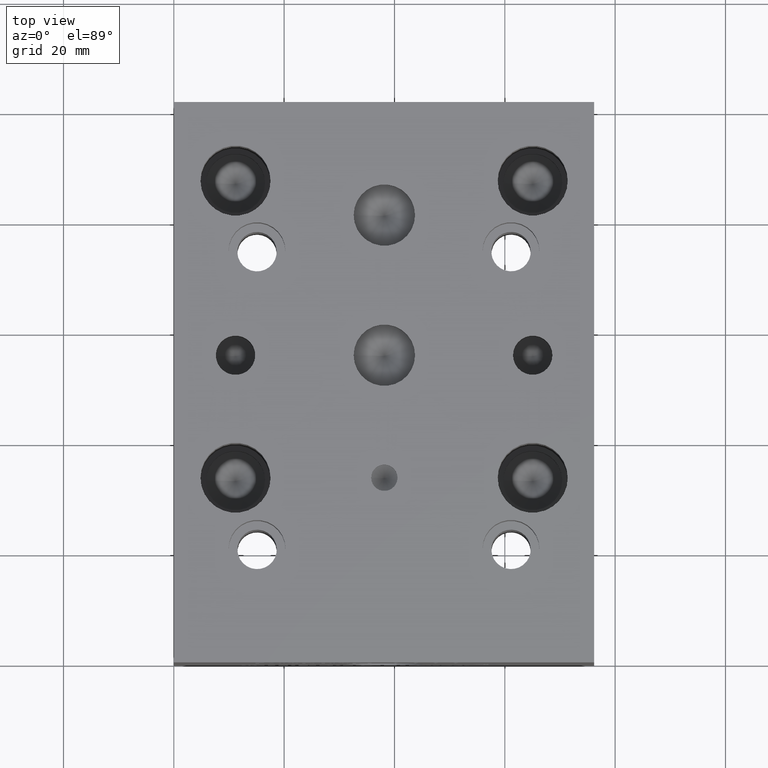
[diagram: clean part render]
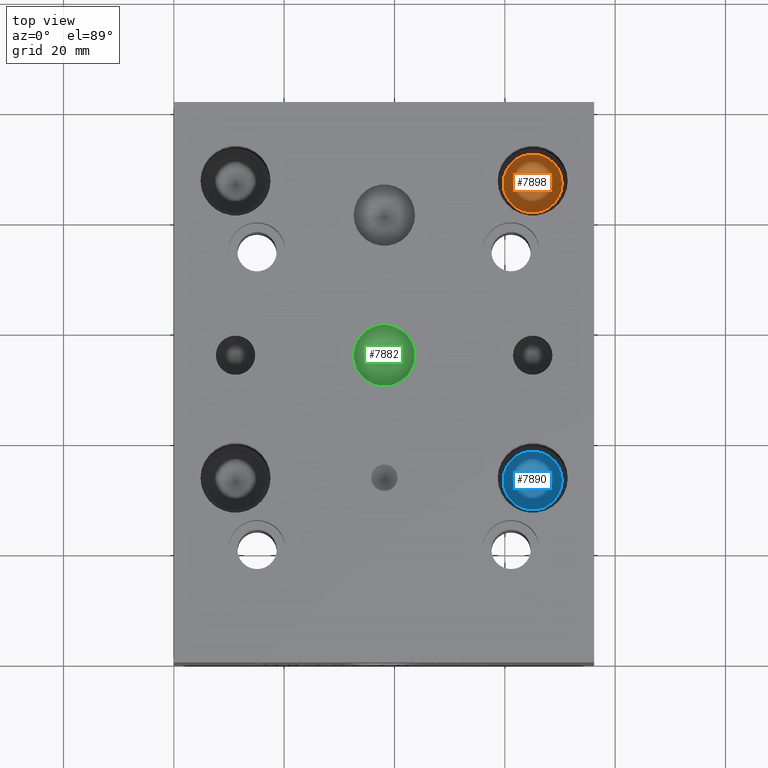
[diagram: same view with three faces highlighted in distinct colors, each labeled with its STEP entity id]
A machine part, top view with three faces highlighted in distinct colors.
Their STEP definitions:

[orange] entity #7898 — the highlighted conical surface has half-angle 60 deg.
#24=CONICAL_SURFACE('',#8344,2.6797,1.0471975511966);
#758=CIRCLE('',#8345,5.3594);
#759=CIRCLE('',#8346,5.3594);
#1197=FACE_OUTER_BOUND('',#1649,.T.);
#1649=EDGE_LOOP('',(#7159,#7160,#7161,#7162));
#2461=LINE('',#13254,#3256);
#3256=VECTOR('',#9999,2.6797);
#3988=VERTEX_POINT('',#13250);
#3989=VERTEX_POINT('',#13251);
#3990=VERTEX_POINT('',#13253);
#5059=EDGE_CURVE('',#3988,#3989,#758,.T.);
#5060=EDGE_CURVE('',#3989,#3990,#2461,.T.);
#5061=EDGE_CURVE('',#3989,#3988,#759,.T.);
#7159=ORIENTED_EDGE('',*,*,#5059,.T.);
#7160=ORIENTED_EDGE('',*,*,#5060,.T.);
#7161=ORIENTED_EDGE('',*,*,#5060,.F.);
#7162=ORIENTED_EDGE('',*,*,#5061,.T.);
#7898=ADVANCED_FACE('',(#1197),#24,.F.);
#8344=AXIS2_PLACEMENT_3D('',#13249,#9995,#9996);
#8345=AXIS2_PLACEMENT_3D('',#13252,#9997,#9998);
#8346=AXIS2_PLACEMENT_3D('',#13255,#10000,#10001);
#9995=DIRECTION('center_axis',(0.,0.,1.));
#9996=DIRECTION('ref_axis',(1.,0.,0.));
#9997=DIRECTION('center_axis',(0.,0.,1.));
#9998=DIRECTION('ref_axis',(1.,0.,0.));
#9999=DIRECTION('',(0.866025403784439,1.06057523872491E-16,-0.5));
#10000=DIRECTION('center_axis',(0.,0.,1.));
#10001=DIRECTION('ref_axis',(1.,0.,0.));
#13249=CARTESIAN_POINT('Origin',(65.0494,87.3252,6.30147448365256));
#13250=CARTESIAN_POINT('',(70.4088,87.3252,7.8486));
#13251=CARTESIAN_POINT('',(59.69,87.3252,7.8486));
#13252=CARTESIAN_POINT('Origin',(65.0494,87.3252,7.8486));
#13253=CARTESIAN_POINT('',(65.0494,87.3252,4.75434896730512));
#13254=CARTESIAN_POINT('',(62.3697,87.3252,6.30147448365256));
#13255=CARTESIAN_POINT('Origin',(65.0494,87.3252,7.8486));

[blue] entity #7890 — the highlighted conical surface has half-angle 60 deg.
#22=CONICAL_SURFACE('',#8322,2.6797,1.0471975511966);
#744=CIRCLE('',#8323,5.3594);
#745=CIRCLE('',#8324,5.3594);
#1189=FACE_OUTER_BOUND('',#1639,.T.);
#1639=EDGE_LOOP('',(#7123,#7124,#7125,#7126));
#2455=LINE('',#13210,#3250);
#3250=VECTOR('',#9949,2.6797);
#3972=VERTEX_POINT('',#13206);
#3973=VERTEX_POINT('',#13207);
#3974=VERTEX_POINT('',#13209);
#5039=EDGE_CURVE('',#3972,#3973,#744,.T.);
#5040=EDGE_CURVE('',#3973,#3974,#2455,.T.);
#5041=EDGE_CURVE('',#3973,#3972,#745,.T.);
#7123=ORIENTED_EDGE('',*,*,#5039,.T.);
#7124=ORIENTED_EDGE('',*,*,#5040,.T.);
#7125=ORIENTED_EDGE('',*,*,#5040,.F.);
#7126=ORIENTED_EDGE('',*,*,#5041,.T.);
#7890=ADVANCED_FACE('',(#1189),#22,.F.);
#8322=AXIS2_PLACEMENT_3D('',#13205,#9945,#9946);
#8323=AXIS2_PLACEMENT_3D('',#13208,#9947,#9948);
#8324=AXIS2_PLACEMENT_3D('',#13211,#9950,#9951);
#9945=DIRECTION('center_axis',(0.,0.,1.));
#9946=DIRECTION('ref_axis',(1.,0.,0.));
#9947=DIRECTION('center_axis',(0.,0.,1.));
#9948=DIRECTION('ref_axis',(1.,0.,0.));
#9949=DIRECTION('',(0.866025403784439,1.06057523872491E-16,-0.5));
#9950=DIRECTION('center_axis',(0.,0.,1.));
#9951=DIRECTION('ref_axis',(1.,0.,0.));
#13205=CARTESIAN_POINT('Origin',(65.0494,33.4518,6.30147448365256));
#13206=CARTESIAN_POINT('',(70.4088,33.4518,7.8486));
#13207=CARTESIAN_POINT('',(59.69,33.4518,7.8486));
#13208=CARTESIAN_POINT('Origin',(65.0494,33.4518,7.8486));
#13209=CARTESIAN_POINT('',(65.0494,33.4518,4.75434896730512));
#13210=CARTESIAN_POINT('',(62.3697,33.4518,6.30147448365256));
#13211=CARTESIAN_POINT('Origin',(65.0494,33.4518,7.8486));

[green] entity #7882 — the highlighted conical surface has half-angle 60 deg.
#18=CONICAL_SURFACE('',#8298,2.7813,1.0471975511966);
#728=CIRCLE('',#8299,5.5626);
#729=CIRCLE('',#8300,5.5626);
#1181=FACE_OUTER_BOUND('',#1631,.T.);
#1631=EDGE_LOOP('',(#7083,#7084,#7085,#7086));
#2447=LINE('',#13158,#3242);
#3242=VECTOR('',#9893,2.7813);
#3952=VERTEX_POINT('',#13154);
#3953=VERTEX_POINT('',#13155);
#3954=VERTEX_POINT('',#13157);
#5015=EDGE_CURVE('',#3952,#3953,#728,.T.);
#5016=EDGE_CURVE('',#3953,#3954,#2447,.T.);
#5017=EDGE_CURVE('',#3953,#3952,#729,.T.);
#7083=ORIENTED_EDGE('',*,*,#5015,.T.);
#7084=ORIENTED_EDGE('',*,*,#5016,.T.);
#7085=ORIENTED_EDGE('',*,*,#5016,.F.);
#7086=ORIENTED_EDGE('',*,*,#5017,.T.);
#7882=ADVANCED_FACE('',(#1181),#18,.F.);
#8298=AXIS2_PLACEMENT_3D('',#13153,#9889,#9890);
#8299=AXIS2_PLACEMENT_3D('',#13156,#9891,#9892);
#8300=AXIS2_PLACEMENT_3D('',#13159,#9894,#9895);
#9889=DIRECTION('center_axis',(0.,0.,1.));
#9890=DIRECTION('ref_axis',(1.,0.,0.));
#9891=DIRECTION('center_axis',(0.,0.,1.));
#9892=DIRECTION('ref_axis',(1.,0.,0.));
#9893=DIRECTION('',(0.866025403784439,1.06057523872491E-16,-0.5));
#9894=DIRECTION('center_axis',(0.,0.,1.));
#9895=DIRECTION('ref_axis',(1.,0.,0.));
#13153=CARTESIAN_POINT('Origin',(38.1508,55.6768,33.2826456963029));
#13154=CARTESIAN_POINT('',(43.7134,55.6768,34.88843));
#13155=CARTESIAN_POINT('',(32.5882,55.6768,34.88843));
#13156=CARTESIAN_POINT('Origin',(38.1508,55.6768,34.88843));
#13157=CARTESIAN_POINT('',(38.1508,55.6768,31.6768613926058));
#13158=CARTESIAN_POINT('',(35.3695,55.6768,33.2826456963029));
#13159=CARTESIAN_POINT('Origin',(38.1508,55.6768,34.88843));